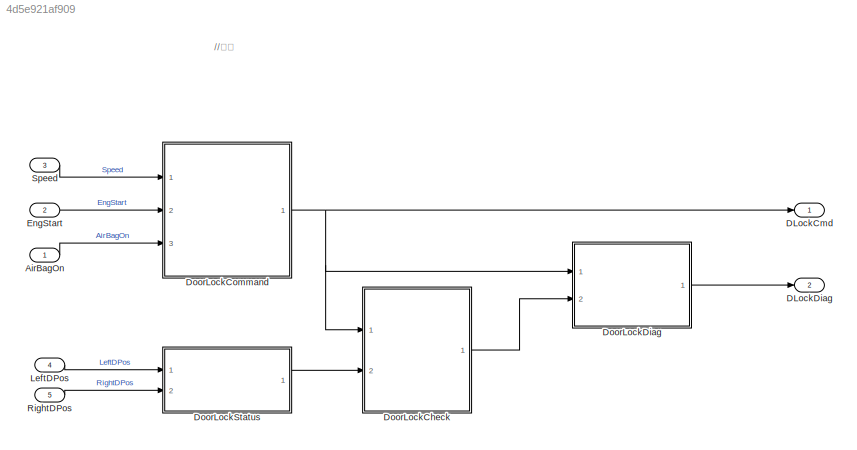
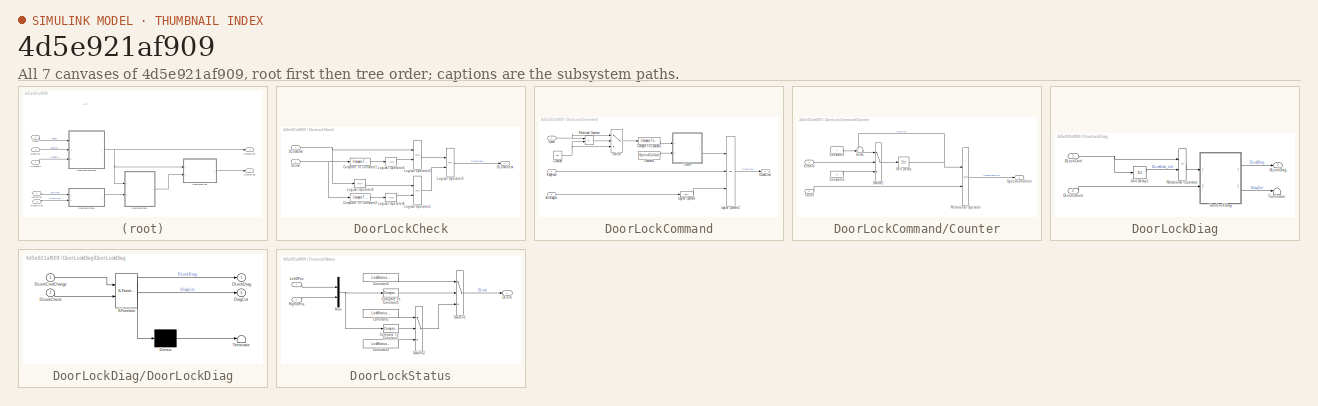
[diagram: thumbnail index - all 7 canvases of the model, root first then tree order]
MODEL slx_4d5e921af909
KIND model
CONFIG AbsTol = auto
CONFIG EnableMultiTasking = on
CONFIG FixedStep = 0.1
CONFIG MaxStep = auto
CONFIG MinStep = auto
CONFIG RelTol = 1e-3
CONFIG SampleTimeConstraint = Unconstrained
CONFIG Solver = FixedStepDiscrete
CONFIG SolverMode = Auto
CONFIG SolverName = FixedStepDiscrete
CONFIG StartTime = 0.0
CONFIG StopTime = 10.0
BLOCK [Inport] AirBagOn
  OutDataTypeStr = boolean
  PortDimensions = 1
  SampleTime = 0.1
BLOCK [Outport] DLockCmd
BLOCK [Outport] DLockDiag
  Port = 2
BLOCK [SubSystem] DoorLockCheck
  Ports = [2, 1]
  RTWFcnNameOpts = Use subsystem name
  RTWSystemCode = Nonreusable function
  RequestExecContextInheritance = off
  TreatAsAtomicUnit = on
BLOCK [Reference] DoorLockCheck/Compare To Constant1  REF=simulink/Logic and Bit
Operations/Compare
To Constant
  Ports = [1, 1]
  SourceBlock = simulink/Logic and Bit\nOperations/Compare\nTo Constant
  SourceProductBaseCode = SL
  SourceType = Compare To Constant
BLOCK [Reference] DoorLockCheck/Compare To Constant2  REF=simulink/Logic and Bit
Operations/Compare
To Constant
  Ports = [1, 1]
  SourceBlock = simulink/Logic and Bit\nOperations/Compare\nTo Constant
  SourceProductBaseCode = SL
  SourceType = Compare To Constant
BLOCK [Inport] DoorLockCheck/DLock
  Port = 2
  SamplingMode = Sample based
  SignalType = real
BLOCK [Outport] DoorLockCheck/DLockCheck
  SamplingMode = Sample based
  SignalType = real
BLOCK [Inport] DoorLockCheck/DLockCmd
  SamplingMode = Sample based
  SignalType = real
BLOCK [Logic] DoorLockCheck/Logical Operator1
  AllPortsSameDT = off
  OutDataTypeStr = boolean
  Ports = [2, 1]
BLOCK [Logic] DoorLockCheck/Logical Operator2
  AllPortsSameDT = off
  OutDataTypeStr = boolean
  Ports = [2, 1]
BLOCK [Logic] DoorLockCheck/Logical Operator3
  AllPortsSameDT = off
  Operator = OR
  OutDataTypeStr = boolean
  Ports = [2, 1]
BLOCK [Logic] DoorLockCheck/Logical Operator4
  AllPortsSameDT = off
  Operator = NOT
  OutDataTypeStr = boolean
  Ports = [1, 1]
BLOCK [Logic] DoorLockCheck/Logical Operator5
  AllPortsSameDT = off
  Inputs = 1
  OutDataTypeStr = boolean
  Ports = [1, 1]
BLOCK [Logic] DoorLockCheck/Logical Operator6
  AllPortsSameDT = off
  Inputs = 1
  OutDataTypeStr = boolean
  Ports = [1, 1]
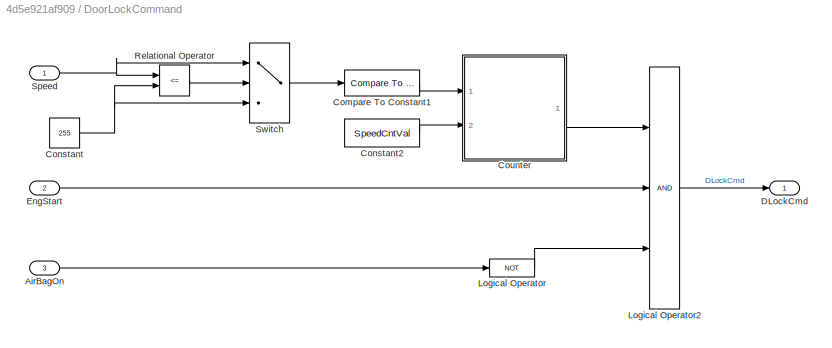
BLOCK [SubSystem] DoorLockCommand
  Ports = [3, 1]
  RTWFcnNameOpts = Use subsystem name
  RTWSystemCode = Nonreusable function
  RequestExecContextInheritance = off
  TreatAsAtomicUnit = on
BLOCK [Inport] DoorLockCommand/AirBagOn
  OutDataTypeStr = boolean
  Port = 3
  PortDimensions = 1
  SampleTime = [0.10000000000000001,0]
  SamplingMode = Sample based
  SignalType = real
BLOCK [Reference] DoorLockCommand/Compare To Constant1  REF=simulink/Logic and Bit
Operations/Compare
To Constant
  Ports = [1, 1]
  SourceBlock = simulink/Logic and Bit\nOperations/Compare\nTo Constant
  SourceProductBaseCode = SL
  SourceType = Compare To Constant
BLOCK [Constant] DoorLockCommand/Constant
  Value = 255
BLOCK [Constant] DoorLockCommand/Constant2
  AttributesFormatString = DataType = %<OutDataTypeStr>
  OutDataTypeStr = uint8
  Value = SpeedCntVal
BLOCK [SubSystem] DoorLockCommand/Counter
  Ports = [2, 1]
  RequestExecContextInheritance = off
BLOCK [Constant] DoorLockCommand/Counter/Constant2
  AttributesFormatString = DataType = %<OutDataTypeStr>
  OutDataTypeStr = uint8
BLOCK [Constant] DoorLockCommand/Counter/Constant3
  AttributesFormatString = DataType = %<OutDataTypeStr>
  OutDataTypeStr = uint8
  Value = 0
BLOCK [Inport] DoorLockCommand/Counter/Count
  Port = 2
BLOCK [Inport] DoorLockCommand/Counter/Enable
BLOCK [RelationalOperator] DoorLockCommand/Counter/Relational Operator
  InputSameDT = off
  OutDataTypeStr = boolean
  Ports = [2, 1]
BLOCK [Outport] DoorLockCommand/Counter/SpeedCondition
BLOCK [Sum] DoorLockCommand/Counter/Sum1
  AttributesFormatString = SatInt = %<SaturateOnIntegerOverflow>
  Inputs = ++|
  Ports = [2, 1]
  RndMeth = Simplest
BLOCK [Switch] DoorLockCommand/Counter/Switch1
  Criteria = u2 ~= 0
  InputSameDT = off
  RndMeth = Simplest
  SaturateOnIntegerOverflow = off
BLOCK [UnitDelay] DoorLockCommand/Counter/Unit Delay
  AttributesFormatString = InitialValue = %<InitialCondition>\nState = %<StateName>
  HasFrameUpgradeWarning = on
  SampleTime = -1
  StateMustResolveToSignalObject = on
  StateName = SpeedCnt
BLOCK [Outport] DoorLockCommand/DLockCmd
  SamplingMode = Sample based
  SignalType = real
BLOCK [Inport] DoorLockCommand/EngStart
  Port = 2
  SamplingMode = Sample based
  SignalType = real
BLOCK [Logic] DoorLockCommand/Logical Operator
  AllPortsSameDT = off
  Operator = NOT
  OutDataTypeStr = boolean
  Ports = [1, 1]
BLOCK [Logic] DoorLockCommand/Logical Operator2
  AllPortsSameDT = off
  Inputs = 3
  OutDataTypeStr = boolean
  Ports = [3, 1]
BLOCK [RelationalOperator] DoorLockCommand/Relational Operator
  InputSameDT = off
  Operator = <=
  OutDataTypeStr = boolean
  Ports = [2, 1]
  RndMeth = Simplest
BLOCK [Inport] DoorLockCommand/Speed
  SamplingMode = Sample based
  SignalType = real
BLOCK [Switch] DoorLockCommand/Switch
  Criteria = u2 ~= 0
  InputSameDT = off
  SaturateOnIntegerOverflow = off
BLOCK [SubSystem] DoorLockDiag
  Ports = [2, 1]
  RTWFcnNameOpts = Use subsystem name
  RTWSystemCode = Nonreusable function
  RequestExecContextInheritance = off
  TreatAsAtomicUnit = on
BLOCK [Inport] DoorLockDiag/DLockCheck
  Port = 2
  SamplingMode = Sample based
  SignalType = real
BLOCK [Inport] DoorLockDiag/DLockCmd
  SamplingMode = Sample based
  SignalType = real
BLOCK [Outport] DoorLockDiag/DLockDiag
  SamplingMode = Sample based
  SignalType = real
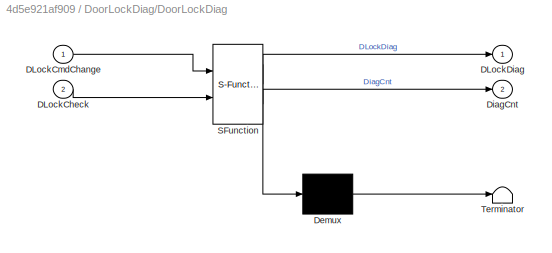
BLOCK [SubSystem] DoorLockDiag/DoorLockDiag
  ErrorFcn = Stateflow.Translate.translate
  PermitHierarchicalResolution = ExplicitOnly
  Ports = [2, 2]
  RequestExecContextInheritance = off
  SFBlockType = Chart
  TreatAsAtomicUnit = on
BLOCK [Demux] DoorLockDiag/DoorLockDiag/ Demux 
  Outputs = 1
  Ports = [1, 1]
BLOCK [S-Function] DoorLockDiag/DoorLockDiag/ SFunction 
  EnableBusSupport = on
  FunctionName = sf_sfun
  Parameters = DiagCntVal
  PortCounts = [2 3]
  Ports = [2, 3]
  SFcnIsStateOwnerBlock = off
  SFunctionDeploymentMode = off
  Tag = Stateflow S-Function 2
BLOCK [Terminator] DoorLockDiag/DoorLockDiag/ Terminator 
BLOCK [Inport] DoorLockDiag/DoorLockDiag/DLockCheck
  Port = 2
BLOCK [Inport] DoorLockDiag/DoorLockDiag/DLockCmdChange
BLOCK [Outport] DoorLockDiag/DoorLockDiag/DLockDiag
BLOCK [Outport] DoorLockDiag/DoorLockDiag/DiagCnt
  Port = 2
BLOCK [RelationalOperator] DoorLockDiag/Relational Operator
  InputSameDT = off
  Operator = ~=
  OutDataTypeStr = boolean
  Ports = [2, 1]
BLOCK [Terminator] DoorLockDiag/Terminator
BLOCK [UnitDelay] DoorLockDiag/Unit Delay1
  AttributesFormatString = InitialValue = %<InitialCondition>\nState = %<StateName>
  HasFrameUpgradeWarning = on
  SampleTime = -1
  StateMustResolveToSignalObject = on
  StateName = DLockCmd_prev
BLOCK [SubSystem] DoorLockStatus
  Ports = [2, 1]
  RTWFcnNameOpts = Use subsystem name
  RTWSystemCode = Nonreusable function
  RequestExecContextInheritance = off
  TreatAsAtomicUnit = on
BLOCK [Reference] DoorLockStatus/Compare To Constant1  REF=simulink/Logic and Bit
Operations/Compare
To Constant
  Ports = [1, 1]
  SourceBlock = simulink/Logic and Bit\nOperations/Compare\nTo Constant
  SourceProductBaseCode = SL
  SourceType = Compare To Constant
BLOCK [Reference] DoorLockStatus/Compare To Constant2  REF=simulink/Logic and Bit
Operations/Compare
To Constant
  Ports = [1, 1]
  SourceBlock = simulink/Logic and Bit\nOperations/Compare\nTo Constant
  SourceProductBaseCode = SL
  SourceType = Compare To Constant
BLOCK [Constant] DoorLockStatus/Constant1
  AttributesFormatString = DataType = %<OutDataTypeStr>
  OutDataTypeStr = Enum: LockStatus
  Value = LockStatus.UNLOCK
BLOCK [Constant] DoorLockStatus/Constant2
  AttributesFormatString = DataType = %<OutDataTypeStr>
  OutDataTypeStr = Enum: LockStatus
  Value = LockStatus.LOCK
BLOCK [Constant] DoorLockStatus/Constant3
  AttributesFormatString = DataType = %<OutDataTypeStr>
  OutDataTypeStr = Enum: LockStatus
  Value = LockStatus.NEUTRAL
BLOCK [Outport] DoorLockStatus/DLock
  SamplingMode = Sample based
  SignalType = real
BLOCK [Inport] DoorLockStatus/LeftDPos
  SamplingMode = Sample based
  SignalType = real
BLOCK [Mux] DoorLockStatus/Mux
  DisplayOption = bar
  Inputs = 2
  Ports = [2, 1]
BLOCK [Inport] DoorLockStatus/RightDPos
  Port = 2
  SamplingMode = Sample based
  SignalType = real
BLOCK [Switch] DoorLockStatus/Switch1
  Criteria = u2 ~= 0
  InputSameDT = off
  RndMeth = Simplest
  SaturateOnIntegerOverflow = off
BLOCK [Switch] DoorLockStatus/Switch2
  Criteria = u2 ~= 0
  InputSameDT = off
  RndMeth = Simplest
  SaturateOnIntegerOverflow = off
BLOCK [Inport] EngStart
  OutDataTypeStr = boolean
  Port = 2
  PortDimensions = 1
  SampleTime = 0.1
BLOCK [Inport] LeftDPos
  OutDataTypeStr = single
  Port = 4
  PortDimensions = 1
  SampleTime = 0.1
BLOCK [Inport] RightDPos
  OutDataTypeStr = single
  Port = 5
  PortDimensions = 1
  SampleTime = 0.1
BLOCK [Inport] Speed
  OutDataTypeStr = single
  Port = 3
  PortDimensions = 1
  SampleTime = 0.1
ANNOTATION (root): //注釈
LINE AirBagOn:1 -> DoorLockCommand:3
LINE DoorLockCheck/Compare To Constant1:1 -> DoorLockCheck/Logical Operator5:1
LINE DoorLockCheck/Compare To Constant2:1 -> DoorLockCheck/Logical Operator6:1
NET DoorLockCheck/DLock:1 -> DoorLockCheck/Compare To Constant1:1, DoorLockCheck/Compare To Constant2:1
NET DoorLockCheck/DLockCmd:1 -> DoorLockCheck/Logical Operator2:1, DoorLockCheck/Logical Operator4:1
LINE DoorLockCheck/Logical Operator1:1 -> DoorLockCheck/Logical Operator3:2
LINE DoorLockCheck/Logical Operator2:1 -> DoorLockCheck/Logical Operator3:1
LINE DoorLockCheck/Logical Operator3:1 -> DoorLockCheck/DLockCheck:1
LINE DoorLockCheck/Logical Operator4:1 -> DoorLockCheck/Logical Operator1:1
LINE DoorLockCheck/Logical Operator5:1 -> DoorLockCheck/Logical Operator2:2
LINE DoorLockCheck/Logical Operator6:1 -> DoorLockCheck/Logical Operator1:2
LINE DoorLockCheck:1 -> DoorLockDiag:2
LINE DoorLockCommand/AirBagOn:1 -> DoorLockCommand/Logical Operator:1
LINE DoorLockCommand/Compare To Constant1:1 -> DoorLockCommand/Counter:1
LINE DoorLockCommand/Constant2:1 -> DoorLockCommand/Counter:2
NET DoorLockCommand/Constant:1 -> DoorLockCommand/Relational Operator:2, DoorLockCommand/Switch:3
LINE DoorLockCommand/Counter/Constant2:1 -> DoorLockCommand/Counter/Sum1:2
LINE DoorLockCommand/Counter/Constant3:1 -> DoorLockCommand/Counter/Switch1:3
LINE DoorLockCommand/Counter/Count:1 -> DoorLockCommand/Counter/Relational Operator:2
LINE DoorLockCommand/Counter/Enable:1 -> DoorLockCommand/Counter/Switch1:2
LINE DoorLockCommand/Counter/Relational Operator:1 -> DoorLockCommand/Counter/SpeedCondition:1
LINE DoorLockCommand/Counter/Sum1:1 -> DoorLockCommand/Counter/Switch1:1
LINE DoorLockCommand/Counter/Switch1:1 -> DoorLockCommand/Counter/Unit Delay:1
NET DoorLockCommand/Counter/Unit Delay:1 -> DoorLockCommand/Counter/Relational Operator:1, DoorLockCommand/Counter/Sum1:1
LINE DoorLockCommand/Counter:1 -> DoorLockCommand/Logical Operator2:1
LINE DoorLockCommand/EngStart:1 -> DoorLockCommand/Logical Operator2:2
LINE DoorLockCommand/Logical Operator2:1 -> DoorLockCommand/DLockCmd:1
LINE DoorLockCommand/Logical Operator:1 -> DoorLockCommand/Logical Operator2:3
LINE DoorLockCommand/Relational Operator:1 -> DoorLockCommand/Switch:2
NET DoorLockCommand/Speed:1 -> DoorLockCommand/Relational Operator:1, DoorLockCommand/Switch:1
LINE DoorLockCommand/Switch:1 -> DoorLockCommand/Compare To Constant1:1
NET DoorLockCommand:1 -> DLockCmd:1, DoorLockCheck:1, DoorLockDiag:1
LINE DoorLockDiag/DLockCheck:1 -> DoorLockDiag/DoorLockDiag:2
NET DoorLockDiag/DLockCmd:1 -> DoorLockDiag/Relational Operator:1, DoorLockDiag/Unit Delay1:1
LINE DoorLockDiag/DoorLockDiag:1 -> DoorLockDiag/DLockDiag:1
LINE DoorLockDiag/DoorLockDiag:2 -> DoorLockDiag/Terminator:1
LINE DoorLockDiag/Relational Operator:1 -> DoorLockDiag/DoorLockDiag:1
LINE DoorLockDiag/Unit Delay1:1 -> DoorLockDiag/Relational Operator:2
LINE DoorLockDiag:1 -> DLockDiag:1
LINE DoorLockStatus/Compare To Constant1:1 -> DoorLockStatus/Switch1:2
LINE DoorLockStatus/Compare To Constant2:1 -> DoorLockStatus/Switch2:2
LINE DoorLockStatus/Constant1:1 -> DoorLockStatus/Switch2:1
LINE DoorLockStatus/Constant2:1 -> DoorLockStatus/Switch1:1
LINE DoorLockStatus/Constant3:1 -> DoorLockStatus/Switch2:3
LINE DoorLockStatus/LeftDPos:1 -> DoorLockStatus/Mux:1
NET DoorLockStatus/Mux:1 -> DoorLockStatus/Compare To Constant1:1, DoorLockStatus/Compare To Constant2:1
LINE DoorLockStatus/RightDPos:1 -> DoorLockStatus/Mux:2
LINE DoorLockStatus/Switch1:1 -> DoorLockStatus/DLock:1
LINE DoorLockStatus/Switch2:1 -> DoorLockStatus/Switch1:3
LINE DoorLockStatus:1 -> DoorLockCheck:2
LINE EngStart:1 -> DoorLockCommand:2
LINE LeftDPos:1 -> DoorLockStatus:1
LINE RightDPos:1 -> DoorLockStatus:2
LINE Speed:1 -> DoorLockCommand:1
note: NET lines group one-source signal fan-out (src -> all destinations, sorted); 1:1 wires keep LINE
CHART DoorLockDiag/DoorLockDiag states=3 transitions=6
  STATE_LABEL 'NORMAL\nentry:\n  DLockDiag = false;'
  STATE_LABEL 'WARNING\nentry:\n  DiagCnt = 1;\nduring:\n  DiagCnt++;'
  STATE_LABEL 'FAIL\nentry:\n  DLockDiag = true;'
CHART  states=0 transitions=0
